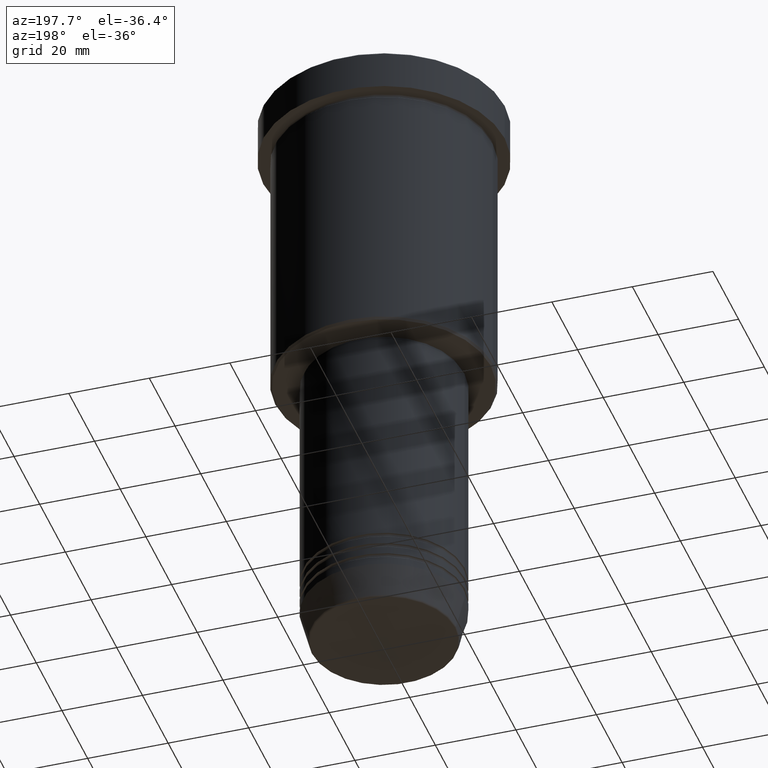
[diagram: clean part render]
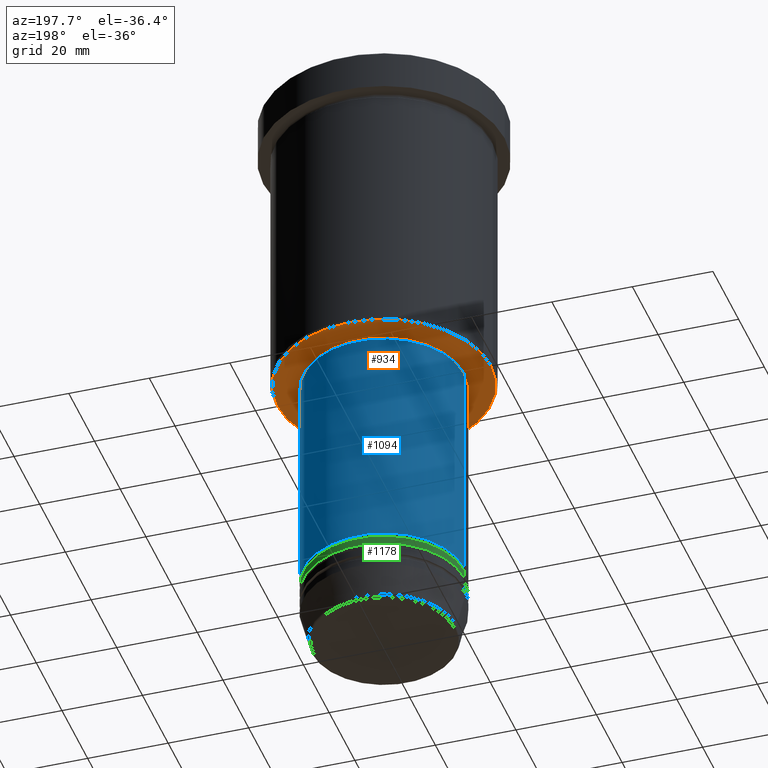
[diagram: same view with three faces highlighted in distinct colors, each labeled with its STEP entity id]
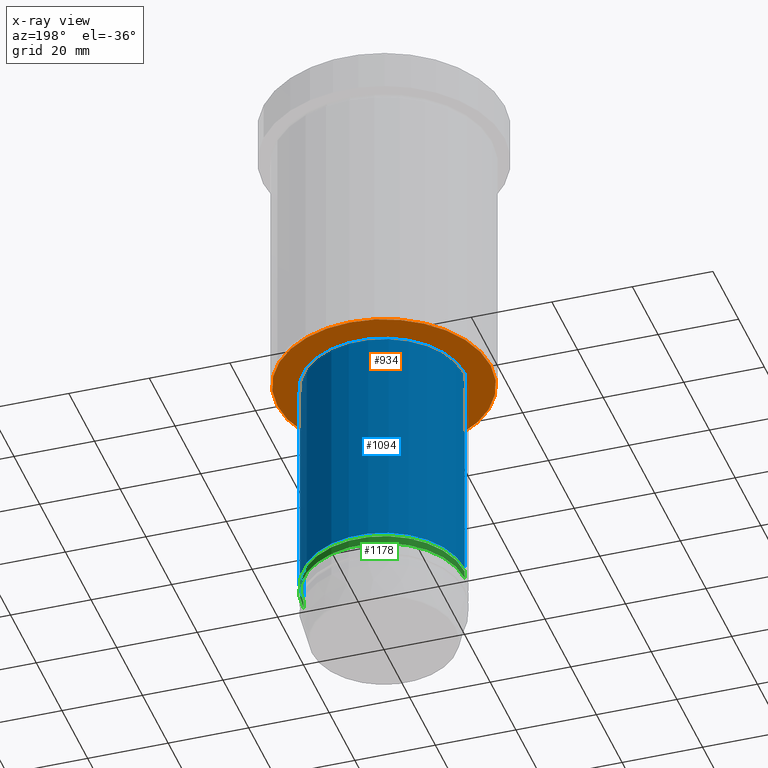
[diagram: x-ray of the same camera — body ghosted, the three highlighted faces saturated]
A machine part, auxiliary view with three faces highlighted in distinct colors.
The next image is the same camera in x-ray (body ghosted, the three faces saturated) — at least one of them is partly hidden behind the body in this view.
Their STEP definitions:

[orange] entity #934 — the highlighted planar face has unit normal (0, 0, -1).
#7 = ORIENTED_EDGE ( 'NONE', *, *, #992, .T. ) ;
#74 = DIRECTION ( 'NONE',  ( 0.000000000000000000, 0.000000000000000000, -1.000000000000000000 ) ) ;
#79 = DIRECTION ( 'NONE',  ( 1.000000000000000000, 0.000000000000000000, 0.000000000000000000 ) ) ;
#119 = VERTEX_POINT ( 'NONE', #983 ) ;
#136 = CIRCLE ( 'NONE', #708, 26.50000000000001066 ) ;
#170 = ORIENTED_EDGE ( 'NONE', *, *, #191, .T. ) ;
#191 = EDGE_CURVE ( 'NONE', #398, #367, #602, .T. ) ;
#202 = DIRECTION ( 'NONE',  ( -1.000000000000000000, 0.000000000000000000, 0.000000000000000000 ) ) ;
#209 = ORIENTED_EDGE ( 'NONE', *, *, #407, .T. ) ;
#216 = AXIS2_PLACEMENT_3D ( 'NONE', #264, #885, #79 ) ;
#256 = VERTEX_POINT ( 'NONE', #641 ) ;
#264 = CARTESIAN_POINT ( 'NONE',  ( 0.000000000000000000, 0.000000000000000000, -75.99999999999998579 ) ) ;
#367 = VERTEX_POINT ( 'NONE', #966 ) ;
#380 = CIRCLE ( 'NONE', #439, 19.50000000000000000 ) ;
#398 = VERTEX_POINT ( 'NONE', #782 ) ;
#407 = EDGE_CURVE ( 'NONE', #367, #398, #380, .T. ) ;
#409 = CIRCLE ( 'NONE', #854, 26.50000000000001066 ) ;
#439 = AXIS2_PLACEMENT_3D ( 'NONE', #1127, #767, #1150 ) ;
#445 = DIRECTION ( 'NONE',  ( 0.000000000000000000, 0.000000000000000000, -1.000000000000000000 ) ) ;
#492 = ORIENTED_EDGE ( 'NONE', *, *, #1043, .T. ) ;
#531 = FACE_BOUND ( 'NONE', #1012, .T. ) ;
#601 = AXIS2_PLACEMENT_3D ( 'NONE', #901, #74, #878 ) ;
#602 = CIRCLE ( 'NONE', #216, 19.50000000000000000 ) ;
#605 = FACE_OUTER_BOUND ( 'NONE', #792, .T. ) ;
#627 = PLANE ( 'NONE',  #601 ) ;
#641 = CARTESIAN_POINT ( 'NONE',  ( 26.50000000000001066, 0.000000000000000000, -75.99999999999998579 ) ) ;
#694 = DIRECTION ( 'NONE',  ( -1.000000000000000000, 0.000000000000000000, 0.000000000000000000 ) ) ;
#708 = AXIS2_PLACEMENT_3D ( 'NONE', #795, #445, #694 ) ;
#715 = CARTESIAN_POINT ( 'NONE',  ( 0.000000000000000000, 0.000000000000000000, -75.99999999999998579 ) ) ;
#728 = DIRECTION ( 'NONE',  ( 0.000000000000000000, 0.000000000000000000, -1.000000000000000000 ) ) ;
#767 = DIRECTION ( 'NONE',  ( -0.000000000000000000, -0.000000000000000000, 1.000000000000000000 ) ) ;
#782 = CARTESIAN_POINT ( 'NONE',  ( 19.50000000000000000, 0.000000000000000000, -75.99999999999998579 ) ) ;
#792 = EDGE_LOOP ( 'NONE', ( #492, #7 ) ) ;
#795 = CARTESIAN_POINT ( 'NONE',  ( 0.000000000000000000, 0.000000000000000000, -75.99999999999998579 ) ) ;
#854 = AXIS2_PLACEMENT_3D ( 'NONE', #715, #728, #202 ) ;
#878 = DIRECTION ( 'NONE',  ( -1.000000000000000000, 0.000000000000000000, -0.000000000000000000 ) ) ;
#885 = DIRECTION ( 'NONE',  ( -0.000000000000000000, -0.000000000000000000, 1.000000000000000000 ) ) ;
#901 = CARTESIAN_POINT ( 'NONE',  ( 0.000000000000000000, 27.00000000000000355, -75.99999999999998579 ) ) ;
#934 = ADVANCED_FACE ( 'NONE', ( #605, #531 ), #627, .T. ) ;
#966 = CARTESIAN_POINT ( 'NONE',  ( -19.50000000000000000, 2.388061258337338939E-15, -75.99999999999998579 ) ) ;
#983 = CARTESIAN_POINT ( 'NONE',  ( -26.50000000000001066, 3.275930187719170735E-15, -75.99999999999998579 ) ) ;
#992 = EDGE_CURVE ( 'NONE', #119, #256, #136, .T. ) ;
#1012 = EDGE_LOOP ( 'NONE', ( #170, #209 ) ) ;
#1043 = EDGE_CURVE ( 'NONE', #256, #119, #409, .T. ) ;
#1127 = CARTESIAN_POINT ( 'NONE',  ( 0.000000000000000000, 0.000000000000000000, -75.99999999999998579 ) ) ;
#1150 = DIRECTION ( 'NONE',  ( 1.000000000000000000, 0.000000000000000000, 0.000000000000000000 ) ) ;

[blue] entity #1094 — the highlighted cylindrical surface (partial cylindrical patch) has radius 20 mm, axis along (-0, -0, 1).
#17 = DIRECTION ( 'NONE',  ( 1.000000000000000000, 0.000000000000000000, 0.000000000000000000 ) ) ;
#19 = ORIENTED_EDGE ( 'NONE', *, *, #894, .T. ) ;
#34 = ORIENTED_EDGE ( 'NONE', *, *, #223, .T. ) ;
#37 = DIRECTION ( 'NONE',  ( 1.000000000000000000, 0.000000000000000000, 0.000000000000000000 ) ) ;
#58 = CARTESIAN_POINT ( 'NONE',  ( -20.00000000000000000, 2.449293598294706513E-15, -133.9999999999999432 ) ) ;
#85 = LINE ( 'NONE', #798, #442 ) ;
#223 = EDGE_CURVE ( 'NONE', #856, #553, #452, .T. ) ;
#277 = AXIS2_PLACEMENT_3D ( 'NONE', #565, #712, #1053 ) ;
#297 = CYLINDRICAL_SURFACE ( 'NONE', #550, 20.00000000000000000 ) ;
#319 = CIRCLE ( 'NONE', #962, 20.00000000000000000 ) ;
#324 = CARTESIAN_POINT ( 'NONE',  ( -20.00000000000000000, 2.449293598294706513E-15, -76.99999999999998579 ) ) ;
#349 = VECTOR ( 'NONE', #1164, 1000.000000000000000 ) ;
#427 = CARTESIAN_POINT ( 'NONE',  ( 0.000000000000000000, 0.000000000000000000, -76.99999999999998579 ) ) ;
#442 = VECTOR ( 'NONE', #623, 1000.000000000000000 ) ;
#452 = LINE ( 'NONE', #1180, #349 ) ;
#454 = ORIENTED_EDGE ( 'NONE', *, *, #874, .F. ) ;
#550 = AXIS2_PLACEMENT_3D ( 'NONE', #837, #653, #17 ) ;
#553 = VERTEX_POINT ( 'NONE', #324 ) ;
#565 = CARTESIAN_POINT ( 'NONE',  ( 0.000000000000000000, 0.000000000000000000, -133.9999999999999432 ) ) ;
#572 = CIRCLE ( 'NONE', #277, 20.00000000000000000 ) ;
#575 = EDGE_LOOP ( 'NONE', ( #19, #34, #454, #986 ) ) ;
#609 = VERTEX_POINT ( 'NONE', #1051 ) ;
#623 = DIRECTION ( 'NONE',  ( -0.000000000000000000, -0.000000000000000000, 1.000000000000000000 ) ) ;
#653 = DIRECTION ( 'NONE',  ( -0.000000000000000000, -0.000000000000000000, 1.000000000000000000 ) ) ;
#712 = DIRECTION ( 'NONE',  ( -0.000000000000000000, -0.000000000000000000, 1.000000000000000000 ) ) ;
#798 = CARTESIAN_POINT ( 'NONE',  ( 20.00000000000000000, 0.000000000000000000, 0.000000000000000000 ) ) ;
#837 = CARTESIAN_POINT ( 'NONE',  ( 0.000000000000000000, 0.000000000000000000, 0.000000000000000000 ) ) ;
#856 = VERTEX_POINT ( 'NONE', #58 ) ;
#859 = VERTEX_POINT ( 'NONE', #956 ) ;
#874 = EDGE_CURVE ( 'NONE', #609, #553, #319, .T. ) ;
#894 = EDGE_CURVE ( 'NONE', #859, #856, #572, .T. ) ;
#931 = FACE_OUTER_BOUND ( 'NONE', #575, .T. ) ;
#956 = CARTESIAN_POINT ( 'NONE',  ( 20.00000000000000000, 0.000000000000000000, -133.9999999999999432 ) ) ;
#962 = AXIS2_PLACEMENT_3D ( 'NONE', #427, #1139, #37 ) ;
#986 = ORIENTED_EDGE ( 'NONE', *, *, #1032, .F. ) ;
#1032 = EDGE_CURVE ( 'NONE', #859, #609, #85, .T. ) ;
#1051 = CARTESIAN_POINT ( 'NONE',  ( 20.00000000000000000, 0.000000000000000000, -76.99999999999998579 ) ) ;
#1053 = DIRECTION ( 'NONE',  ( 1.000000000000000000, 0.000000000000000000, 0.000000000000000000 ) ) ;
#1094 = ADVANCED_FACE ( 'NONE', ( #931 ), #297, .T. ) ;
#1139 = DIRECTION ( 'NONE',  ( -0.000000000000000000, -0.000000000000000000, 1.000000000000000000 ) ) ;
#1164 = DIRECTION ( 'NONE',  ( -0.000000000000000000, -0.000000000000000000, 1.000000000000000000 ) ) ;
#1180 = CARTESIAN_POINT ( 'NONE',  ( -20.00000000000000000, 2.449293598294706513E-15, 0.000000000000000000 ) ) ;

[green] entity #1178 — the highlighted cylindrical surface (partial cylindrical patch) has radius 20 mm, axis along (-0, -0, 1).
#101 = CARTESIAN_POINT ( 'NONE',  ( 0.000000000000000000, 0.000000000000000000, 0.000000000000000000 ) ) ;
#110 = CIRCLE ( 'NONE', #926, 20.00000000000000000 ) ;
#141 = DIRECTION ( 'NONE',  ( 1.000000000000000000, 0.000000000000000000, 0.000000000000000000 ) ) ;
#183 = EDGE_LOOP ( 'NONE', ( #302, #718, #938, #375 ) ) ;
#238 = VECTOR ( 'NONE', #325, 1000.000000000000000 ) ;
#249 = CARTESIAN_POINT ( 'NONE',  ( -20.00000000000000000, 2.449293598294706513E-15, -134.9999999999999432 ) ) ;
#255 = EDGE_CURVE ( 'NONE', #925, #950, #291, .T. ) ;
#279 = CIRCLE ( 'NONE', #1175, 20.00000000000000000 ) ;
#291 = LINE ( 'NONE', #979, #238 ) ;
#292 = DIRECTION ( 'NONE',  ( 1.000000000000000000, 0.000000000000000000, 0.000000000000000000 ) ) ;
#302 = ORIENTED_EDGE ( 'NONE', *, *, #422, .T. ) ;
#325 = DIRECTION ( 'NONE',  ( -0.000000000000000000, -0.000000000000000000, 1.000000000000000000 ) ) ;
#375 = ORIENTED_EDGE ( 'NONE', *, *, #255, .F. ) ;
#396 = CARTESIAN_POINT ( 'NONE',  ( 0.000000000000000000, 0.000000000000000000, -134.9999999999999432 ) ) ;
#412 = CARTESIAN_POINT ( 'NONE',  ( -20.00000000000000000, 2.449293598294706513E-15, 0.000000000000000000 ) ) ;
#422 = EDGE_CURVE ( 'NONE', #925, #592, #110, .T. ) ;
#489 = FACE_OUTER_BOUND ( 'NONE', #183, .T. ) ;
#577 = LINE ( 'NONE', #412, #890 ) ;
#583 = DIRECTION ( 'NONE',  ( -0.000000000000000000, -0.000000000000000000, 1.000000000000000000 ) ) ;
#592 = VERTEX_POINT ( 'NONE', #1129 ) ;
#649 = DIRECTION ( 'NONE',  ( -0.000000000000000000, -0.000000000000000000, 1.000000000000000000 ) ) ;
#660 = AXIS2_PLACEMENT_3D ( 'NONE', #101, #722, #292 ) ;
#704 = CARTESIAN_POINT ( 'NONE',  ( 20.00000000000000000, 0.000000000000000000, -136.9999999999999432 ) ) ;
#718 = ORIENTED_EDGE ( 'NONE', *, *, #800, .T. ) ;
#722 = DIRECTION ( 'NONE',  ( -0.000000000000000000, -0.000000000000000000, 1.000000000000000000 ) ) ;
#761 = VERTEX_POINT ( 'NONE', #249 ) ;
#779 = DIRECTION ( 'NONE',  ( -0.000000000000000000, -0.000000000000000000, 1.000000000000000000 ) ) ;
#800 = EDGE_CURVE ( 'NONE', #592, #761, #577, .T. ) ;
#890 = VECTOR ( 'NONE', #583, 1000.000000000000000 ) ;
#925 = VERTEX_POINT ( 'NONE', #704 ) ;
#926 = AXIS2_PLACEMENT_3D ( 'NONE', #951, #779, #141 ) ;
#938 = ORIENTED_EDGE ( 'NONE', *, *, #1114, .F. ) ;
#950 = VERTEX_POINT ( 'NONE', #984 ) ;
#951 = CARTESIAN_POINT ( 'NONE',  ( 0.000000000000000000, 0.000000000000000000, -136.9999999999999432 ) ) ;
#979 = CARTESIAN_POINT ( 'NONE',  ( 20.00000000000000000, 0.000000000000000000, 0.000000000000000000 ) ) ;
#984 = CARTESIAN_POINT ( 'NONE',  ( 20.00000000000000000, 0.000000000000000000, -134.9999999999999432 ) ) ;
#1008 = DIRECTION ( 'NONE',  ( 1.000000000000000000, 0.000000000000000000, 0.000000000000000000 ) ) ;
#1091 = CYLINDRICAL_SURFACE ( 'NONE', #660, 20.00000000000000000 ) ;
#1114 = EDGE_CURVE ( 'NONE', #950, #761, #279, .T. ) ;
#1129 = CARTESIAN_POINT ( 'NONE',  ( -20.00000000000000000, 2.449293598294706513E-15, -136.9999999999999432 ) ) ;
#1175 = AXIS2_PLACEMENT_3D ( 'NONE', #396, #649, #1008 ) ;
#1178 = ADVANCED_FACE ( 'NONE', ( #489 ), #1091, .T. ) ;